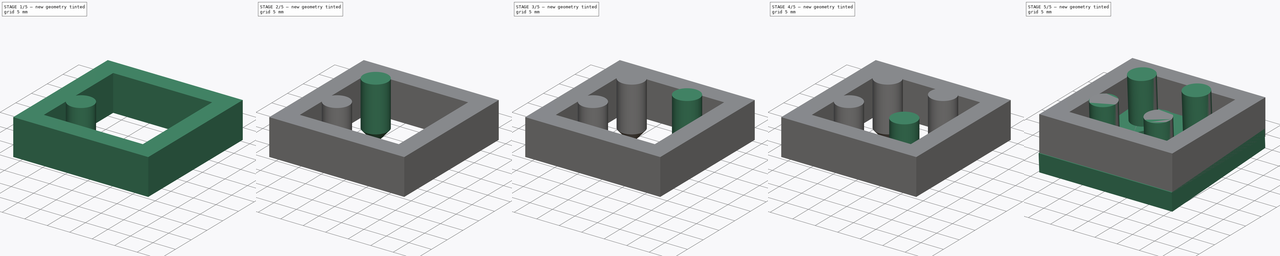
[diagram: build sequence overview — one tinted view per stage of 5, left to right]
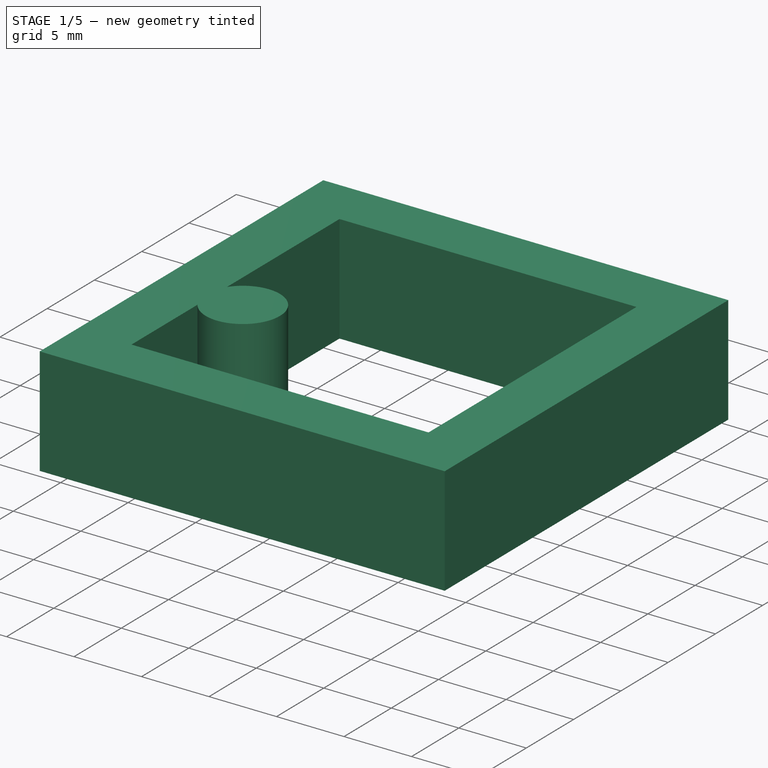
[diagram: stage 1 of 5 — iso view after this stage's code; geometry added in this stage tinted green]
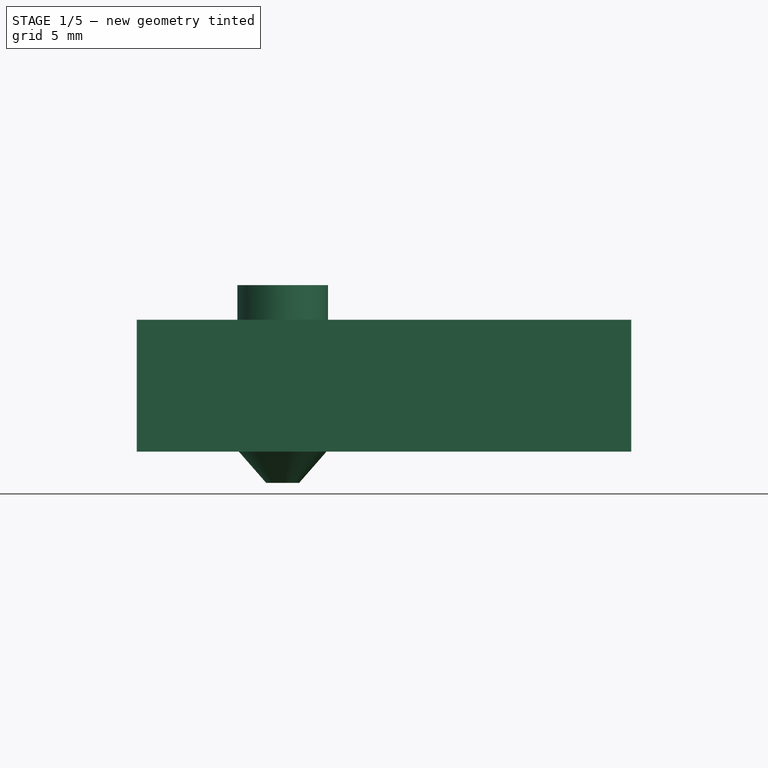
[diagram: stage 1 of 5 — front view after this stage's code; geometry added in this stage tinted green]
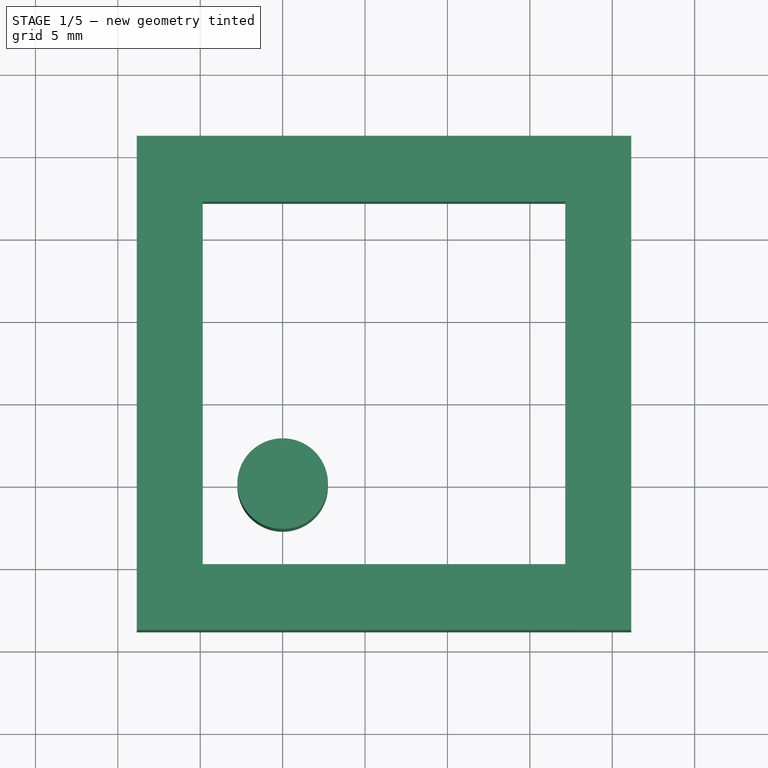
[diagram: stage 1 of 5 — top view after this stage's code; geometry added in this stage tinted green]
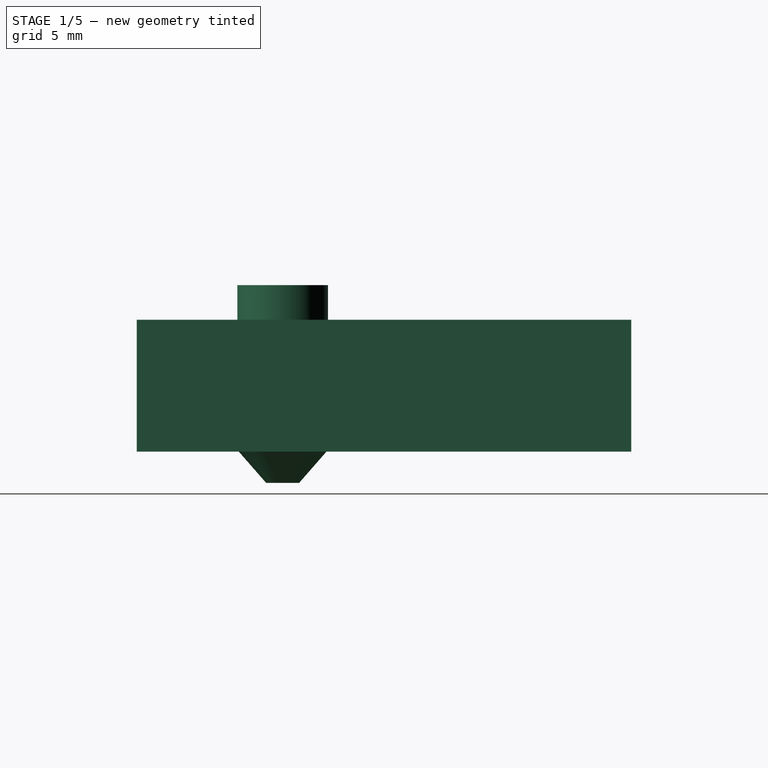
[diagram: stage 1 of 5 — right view after this stage's code; geometry added in this stage tinted green]
FCSTD DOCUMENT  (FreeCAD 0.19R0.19.2)
Label: motorMount006
License: All rights reserved
LicenseURL: http://en.wikipedia.org/wiki/All_rights_reserved
objects: Part::Cone×4, Part::Cylinder×4, Part::Fuse×4, Sketcher::SketchObject×2, Part::Extrusion×2, Part::MultiFuse×1
note: 17 computed .brp shape members not serialized (recipe doc carries the construction recipe); baked Part::Feature solids carry a one-line shape summary decoded from their .brp

FEATURE [Part::Cone] Cone003
  Angle = 360
  AttacherType = Attacher::AttachEngine3D
  Height = 2
  Placement = pos=(0,0,1.5) rot=(0,0,1;0rad)
  Radius1 = 1
  Radius2 = 2.75
FEATURE [Part::Cylinder] Cylinder003
  Angle = 360
  AttacherType = Attacher::AttachEngine3D
  Height = 10
  Placement = pos=(0,0,3.5) rot=(0,0,1;0rad)
  Radius = 2.75
FEATURE [Sketcher::SketchObject] Sketch001
  FullyConstrained = true
  sketch-geometry (8):
    g0: LineSegment StartX=-8.85 StartY=21.15 StartZ=0 EndX=21.15 EndY=21.15 EndZ=0
    g1: LineSegment StartX=21.15 StartY=21.15 StartZ=0 EndX=21.15 EndY=-8.85 EndZ=0
    g2: LineSegment StartX=-8.85 StartY=21.15 StartZ=0 EndX=-8.85 EndY=-8.85 EndZ=0
    g3: LineSegment StartX=-8.85 StartY=-8.85 StartZ=0 EndX=21.15 EndY=-8.85 EndZ=0
    g4: LineSegment StartX=-4.85 StartY=-4.85 StartZ=0 EndX=17.15 EndY=-4.85 EndZ=0
    g5: LineSegment StartX=17.15 StartY=17.15 StartZ=0 EndX=17.15 EndY=-4.85 EndZ=0
    g6: LineSegment StartX=-4.85 StartY=17.15 StartZ=0 EndX=17.15 EndY=17.15 EndZ=0
    g7: LineSegment StartX=-4.85 StartY=17.15 StartZ=0 EndX=-4.85 EndY=-4.85 EndZ=0
  constraints (24):
    c: Horizontal(g0)
    c: Distance(g0) = 30
    c: Vertical(g1)
    c: Block(g0)
    c: Distance(g1) = 30
    c: Coincident(g1,g0)
    c: Vertical(g2)
    c: Distance(g2) = 30
    c: Coincident(g2,g0)
    c: Block(g2)
    c: Block(g1)
    c: Coincident(g3,g2)
    c: Coincident(g3,g1)
    c: Horizontal(g4)
    c: Distance(g4) = 22
    c: Coincident(g5,g4)
    c: Vertical(g5)
    c: PointOnObject(g6,g5)
    c: Horizontal(g6)
    c: Block(g6)
    c: Block(g5)
    c: Coincident(g7,g6)
    c: Coincident(g7,g4)
    c: Vertical(g7)
FEATURE [Part::Extrusion] Extrude001
  Base = -> Sketch001
  Dir = (0,0,1)
  DirMode = 2
  FaceMakerClass = Part::FaceMakerBullseye
  LengthFwd = 8
  LengthRev = 0
  Placement = pos=(0,0,3.4) rot=(0,0,1;0rad)
  Solid = true
  Symmetric = false
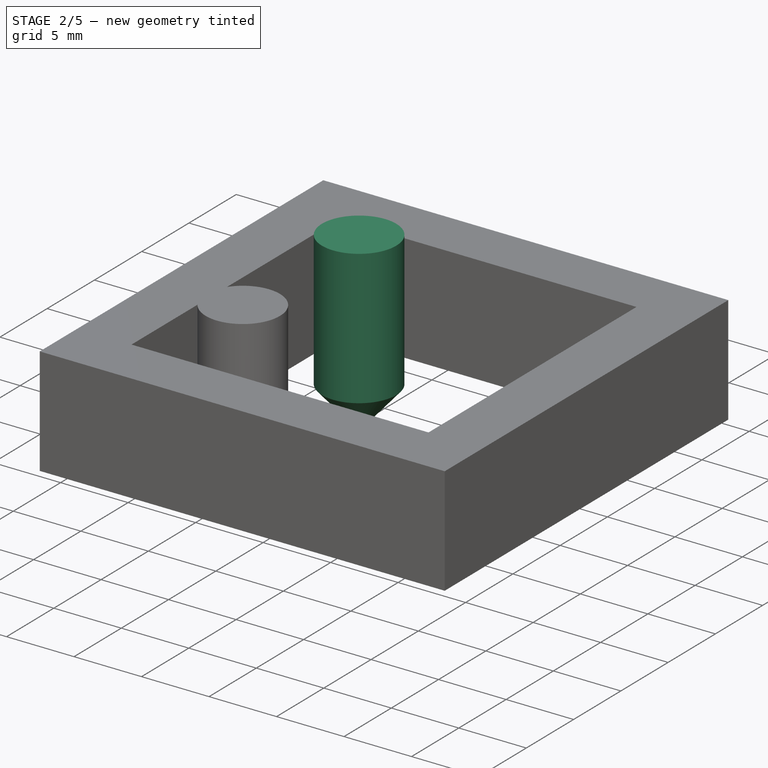
[diagram: stage 2 of 5 — iso view after this stage's code; geometry added in this stage tinted green]
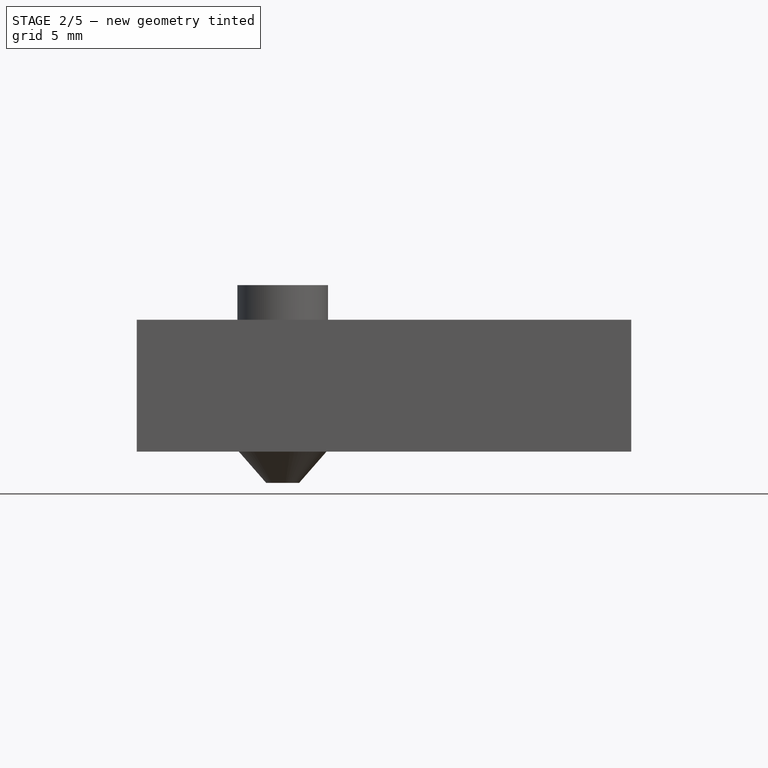
[diagram: stage 2 of 5 — front view after this stage's code; geometry added in this stage tinted green]
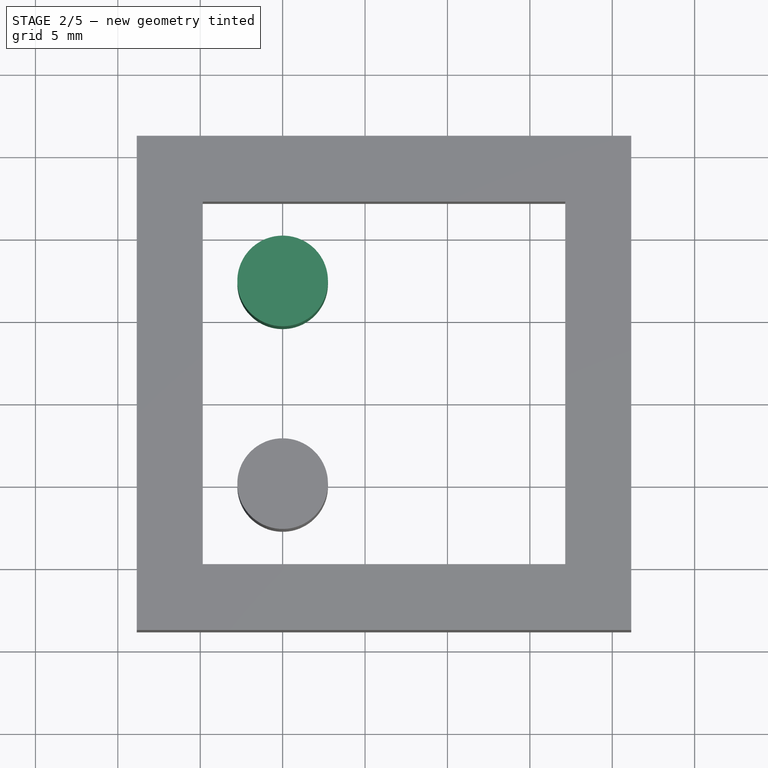
[diagram: stage 2 of 5 — top view after this stage's code; geometry added in this stage tinted green]
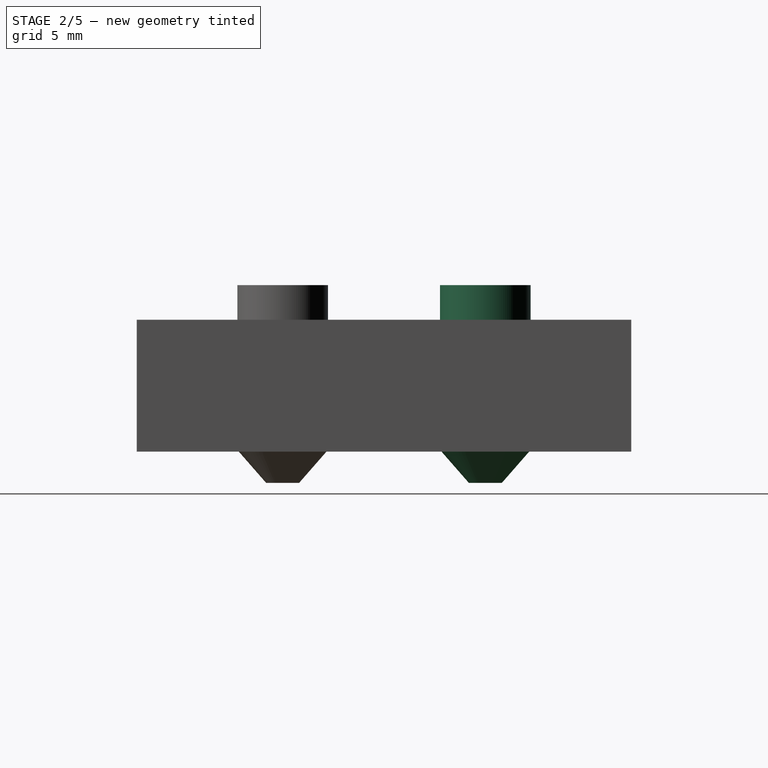
[diagram: stage 2 of 5 — right view after this stage's code; geometry added in this stage tinted green]
FEATURE [Part::Cone] Cone002
  Angle = 360
  AttacherType = Attacher::AttachEngine3D
  Height = 2
  Placement = pos=(0,0,1.5) rot=(0,0,1;0rad)
  Radius1 = 1
  Radius2 = 2.75
FEATURE [Part::Cylinder] Cylinder002
  Angle = 360
  AttacherType = Attacher::AttachEngine3D
  Height = 10
  Placement = pos=(0,0,3.5) rot=(0,0,1;0rad)
  Radius = 2.75
FEATURE [Part::Fuse] Fusion003  label="removeFromMainToCreateScrewChamfer003"
  Base = -> Cone003
  Placement = pos=(0,12.3,0) rot=(0,0,1;0rad)
  Tool = -> Cylinder003
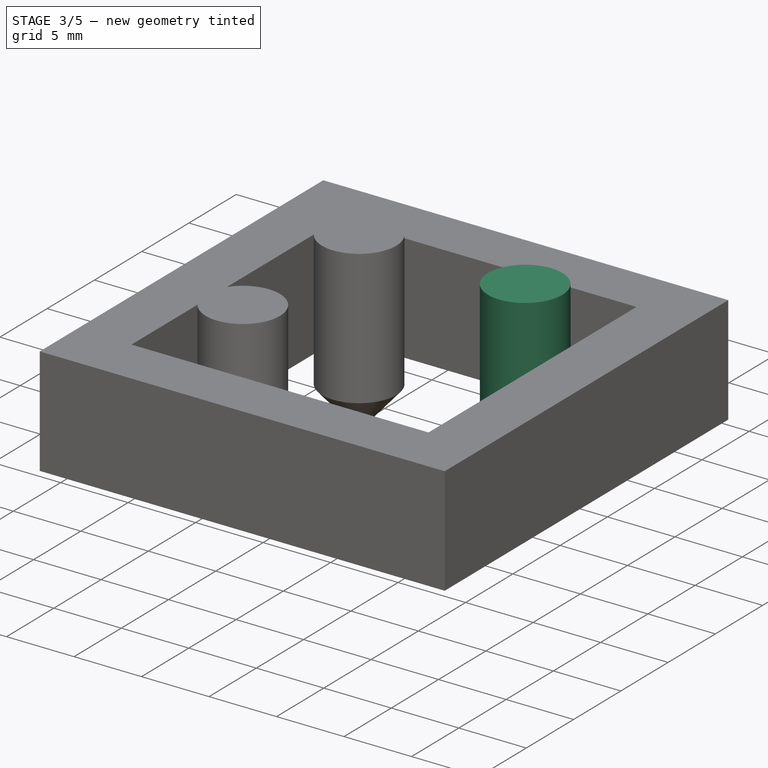
[diagram: stage 3 of 5 — iso view after this stage's code; geometry added in this stage tinted green]
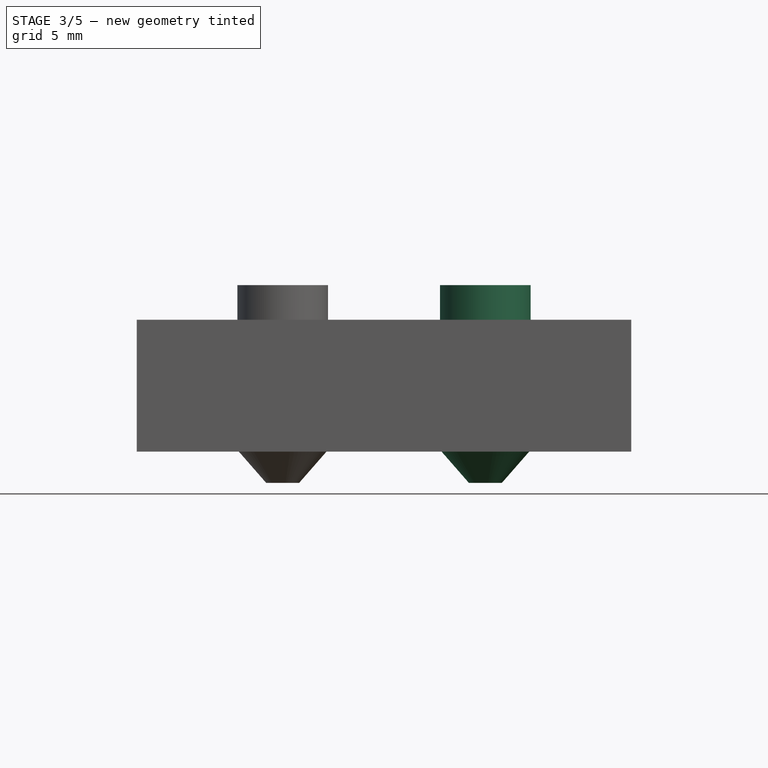
[diagram: stage 3 of 5 — front view after this stage's code; geometry added in this stage tinted green]
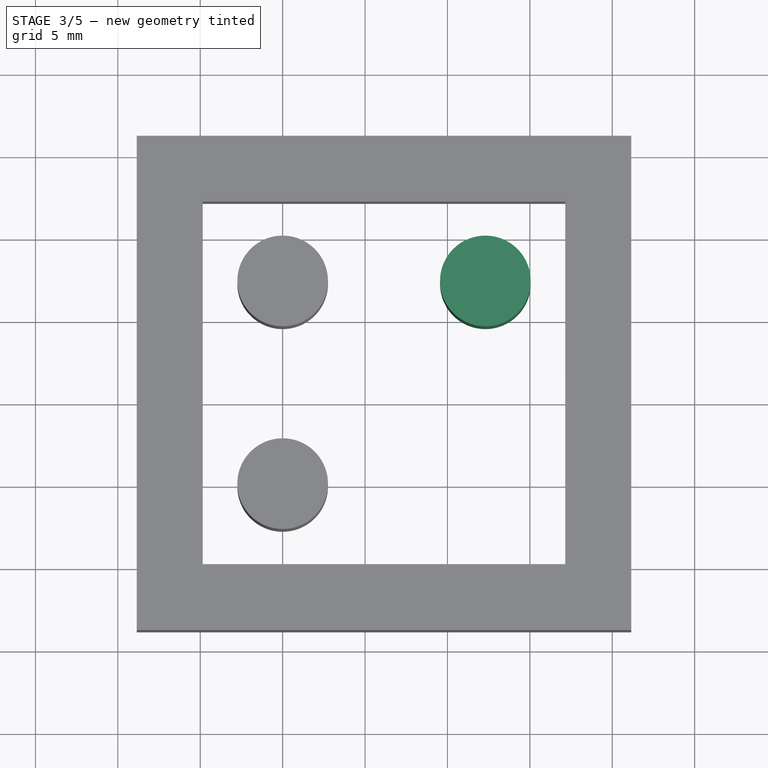
[diagram: stage 3 of 5 — top view after this stage's code; geometry added in this stage tinted green]
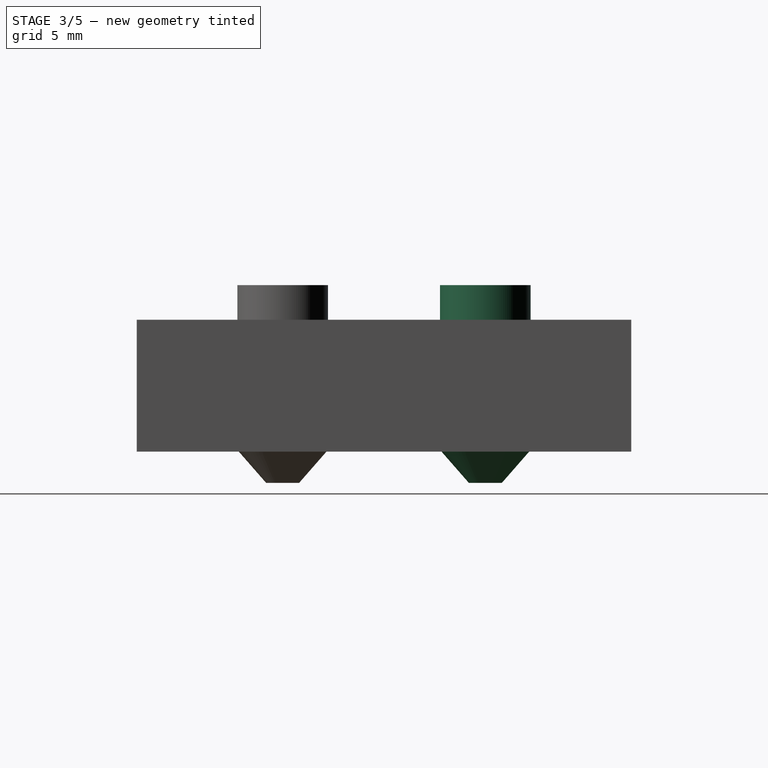
[diagram: stage 3 of 5 — right view after this stage's code; geometry added in this stage tinted green]
FEATURE [Part::Cone] Cone001
  Angle = 360
  AttacherType = Attacher::AttachEngine3D
  Height = 2
  Placement = pos=(0,0,1.5) rot=(0,0,1;0rad)
  Radius1 = 1
  Radius2 = 2.75
FEATURE [Part::Cylinder] Cylinder001
  Angle = 360
  AttacherType = Attacher::AttachEngine3D
  Height = 10
  Placement = pos=(0,0,3.5) rot=(0,0,1;0rad)
  Radius = 2.75
FEATURE [Part::Fuse] Fusion002  label="removeFromMainToCreateScrewChamfer002"
  Base = -> Cone002
  Placement = pos=(12.3,12.3,0) rot=(0,0,1;0rad)
  Tool = -> Cylinder002
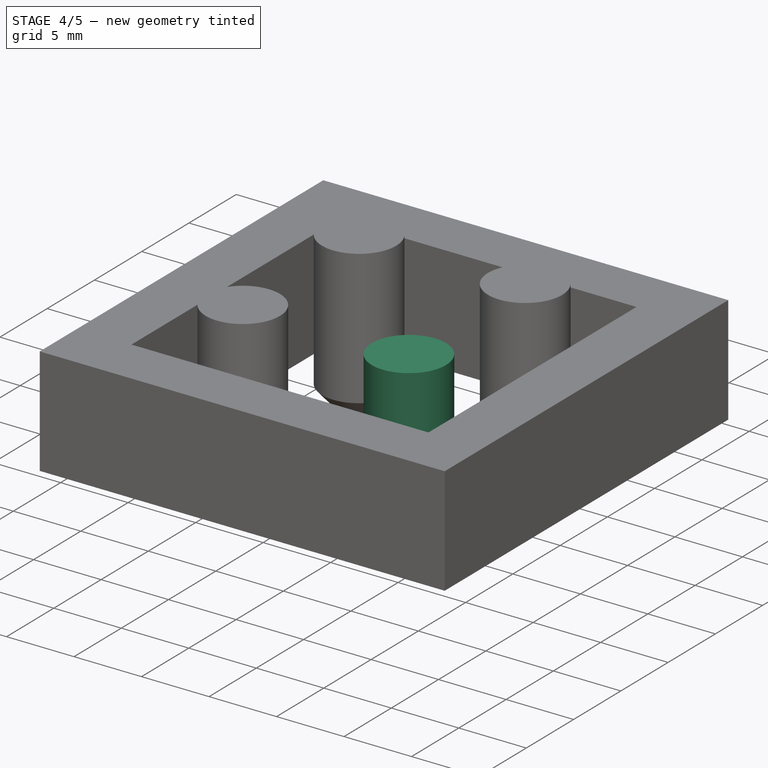
[diagram: stage 4 of 5 — iso view after this stage's code; geometry added in this stage tinted green]
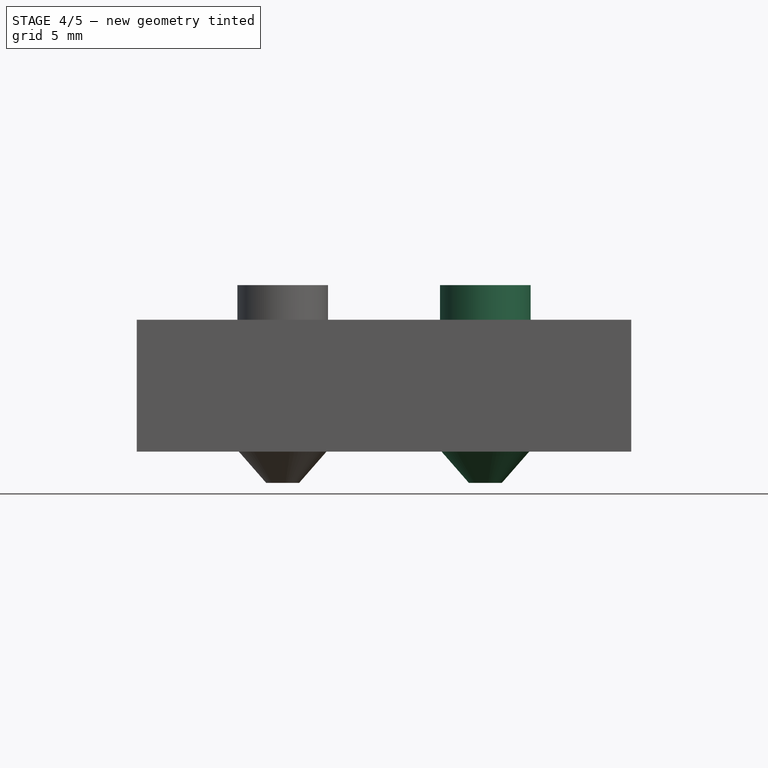
[diagram: stage 4 of 5 — front view after this stage's code; geometry added in this stage tinted green]
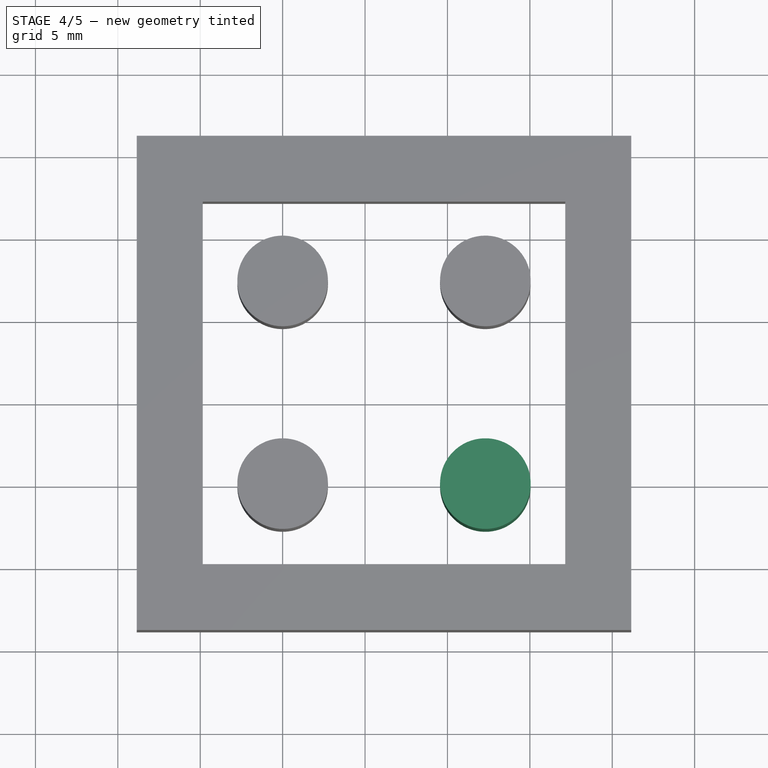
[diagram: stage 4 of 5 — top view after this stage's code; geometry added in this stage tinted green]
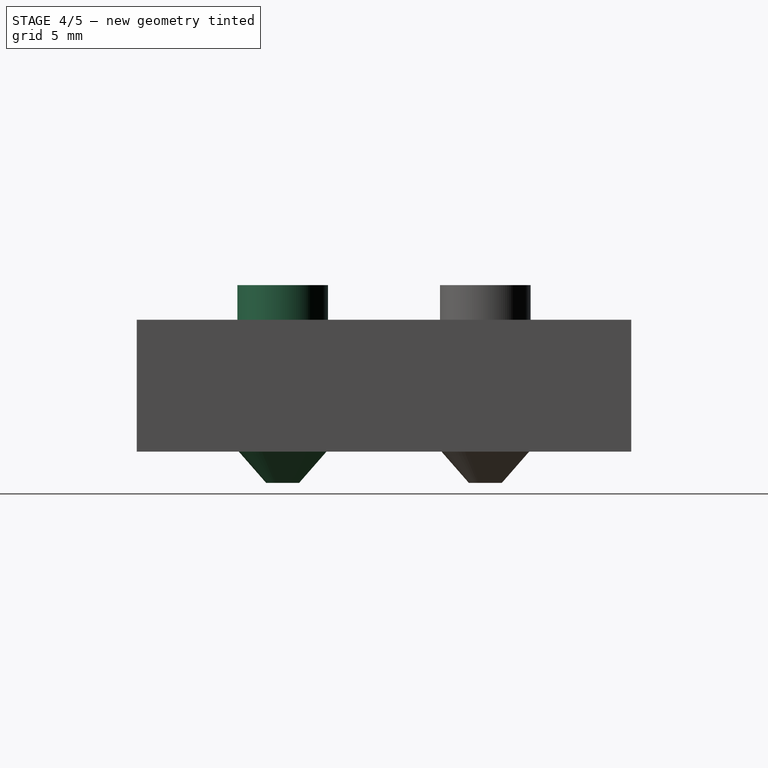
[diagram: stage 4 of 5 — right view after this stage's code; geometry added in this stage tinted green]
FEATURE [Part::Cone] Cone
  Angle = 360
  AttacherType = Attacher::AttachEngine3D
  Height = 2
  Placement = pos=(0,0,1.5) rot=(0,0,1;0rad)
  Radius1 = 1
  Radius2 = 2.75
FEATURE [Part::Cylinder] Cylinder
  Angle = 360
  AttacherType = Attacher::AttachEngine3D
  Height = 10
  Placement = pos=(0,0,3.5) rot=(0,0,1;0rad)
  Radius = 2.75
FEATURE [Part::Fuse] Fusion001  label="removeFromMainToCreateScrewChamfer001"
  Base = -> Cone001
  Placement = pos=(12.3,0,0) rot=(0,0,1;0rad)
  Tool = -> Cylinder001
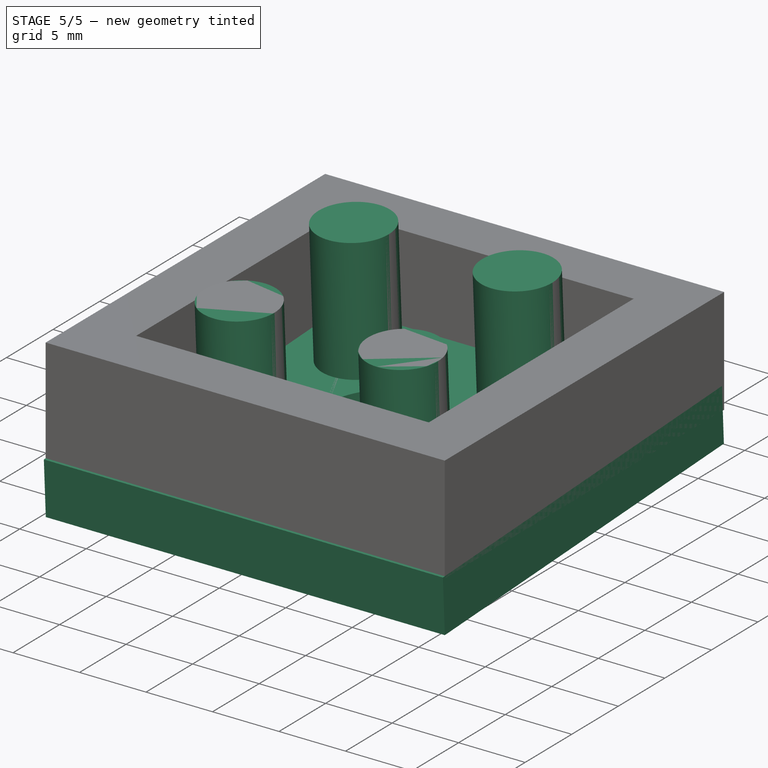
[diagram: stage 5 of 5 — iso view after this stage's code; geometry added in this stage tinted green]
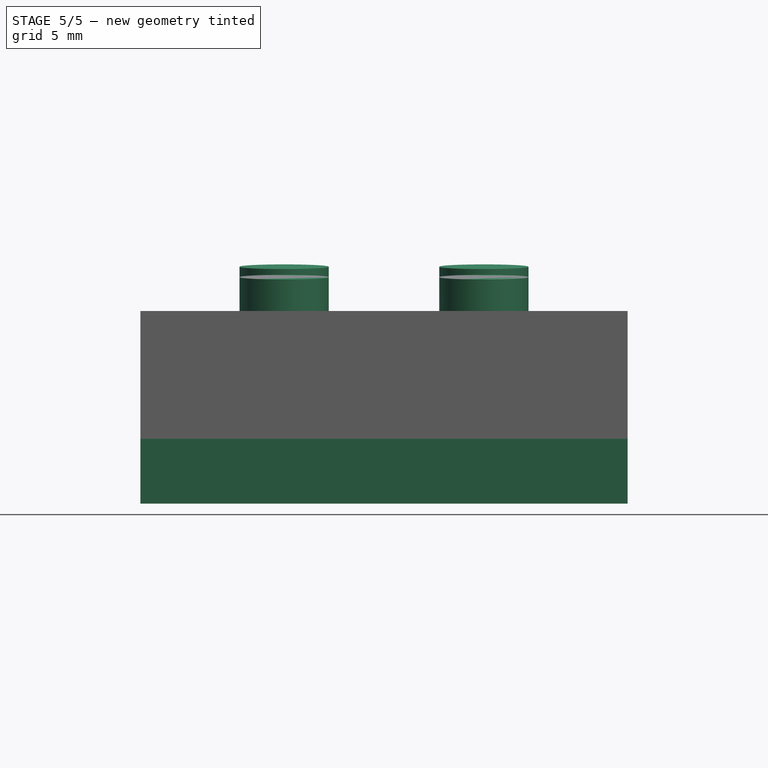
[diagram: stage 5 of 5 — front view after this stage's code; geometry added in this stage tinted green]
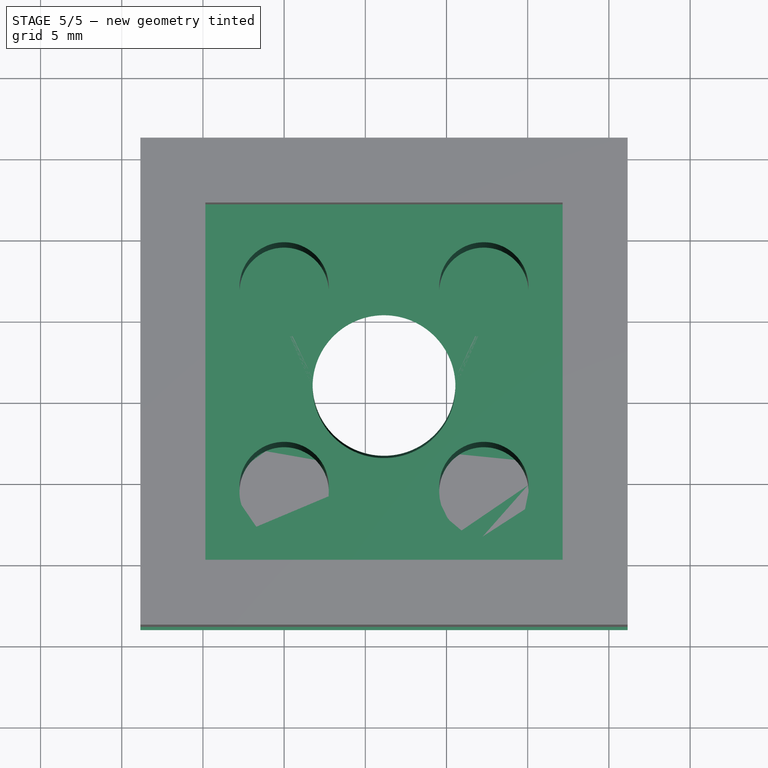
[diagram: stage 5 of 5 — top view after this stage's code; geometry added in this stage tinted green]
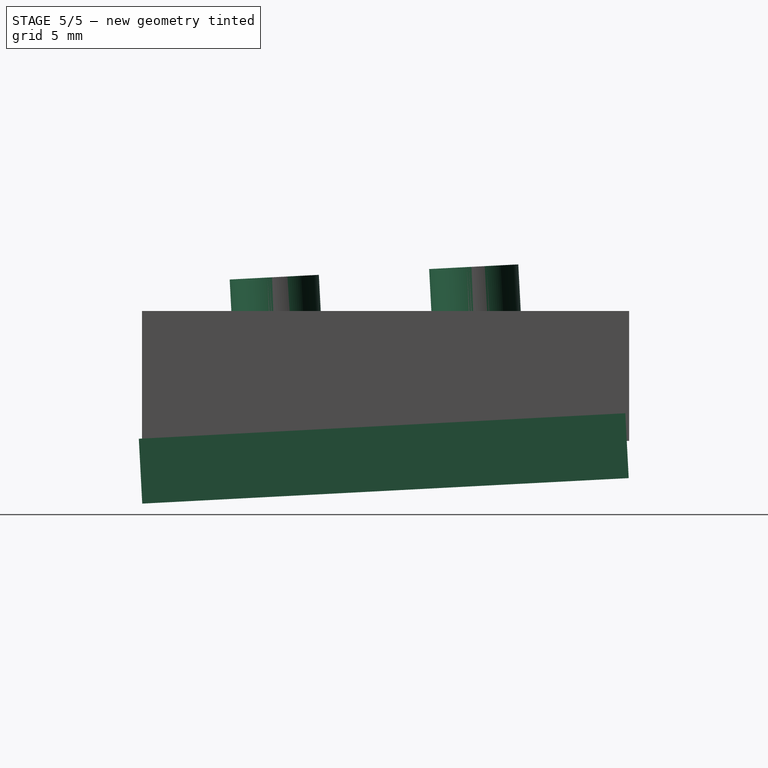
[diagram: stage 5 of 5 — right view after this stage's code; geometry added in this stage tinted green]
FEATURE [Sketcher::SketchObject] Sketch
  FullyConstrained = true
  sketch-geometry (9):
    g0: Circle CenterX=6.15 CenterY=6.15 CenterZ=0 NormalX=0 NormalY=0 NormalZ=1 AngleXU=0 Radius=4.4
    g1: LineSegment StartX=-8.85 StartY=21.15 StartZ=0 EndX=21.15 EndY=21.15 EndZ=0
    g2: LineSegment StartX=21.15 StartY=21.15 StartZ=0 EndX=21.15 EndY=-8.85 EndZ=0
    g3: LineSegment StartX=-8.85 StartY=21.15 StartZ=0 EndX=-8.85 EndY=-8.85 EndZ=0
    g4: LineSegment StartX=-8.85 StartY=-8.85 StartZ=0 EndX=21.15 EndY=-8.85 EndZ=0
    g5: Circle CenterX=0 CenterY=12.3 CenterZ=0 NormalX=0 NormalY=0 NormalZ=1 AngleXU=0 Radius=1
    g6: Circle CenterX=12.3 CenterY=12.3 CenterZ=0 NormalX=0 NormalY=0 NormalZ=1 AngleXU=0 Radius=1
    g7: Circle CenterX=12.3 CenterY=0 CenterZ=0 NormalX=0 NormalY=0 NormalZ=1 AngleXU=0 Radius=1
    g8: Circle CenterX=0 CenterY=0 CenterZ=0 NormalX=0 NormalY=0 NormalZ=1 AngleXU=0 Radius=1
  constraints (18):
    c: Block(g0)
    c: Horizontal(g1)
    c: Distance(g1) = 30
    c: Vertical(g2)
    c: Block(g1)
    c: Distance(g2) = 30
    c: Coincident(g2,g1)
    c: Vertical(g3)
    c: Distance(g3) = 30
    c: Coincident(g3,g1)
    c: Block(g3)
    c: Block(g2)
    c: Coincident(g4,g3)
    c: Coincident(g4,g2)
    c: Block(g5)
    c: Block(g6)
    c: Block(g7)
    c: Block(g8)
FEATURE [Part::Extrusion] Extrude
  Base = -> Sketch
  Dir = (0,0,1)
  DirMode = 2
  FaceMakerClass = Part::FaceMakerBullseye
  LengthFwd = 4
  LengthRev = 0
  Placement = pos=(0,0,0) rot=(1,0,0;0.05236rad)
  Solid = true
  Symmetric = false
FEATURE [Part::Fuse] Fusion  label="removeFromMainToCreateScrewChamfer"
  Base = -> Cone
  Tool = -> Cylinder
FEATURE [Part::MultiFuse] Fusion004  label="removeFromMainToCreateScrewChamfer004"
  Placement = pos=(0,0,0) rot=(1,0,0;0.05236rad)
  Shapes = -> [Fusion,Fusion001,Fusion002,Fusion003]
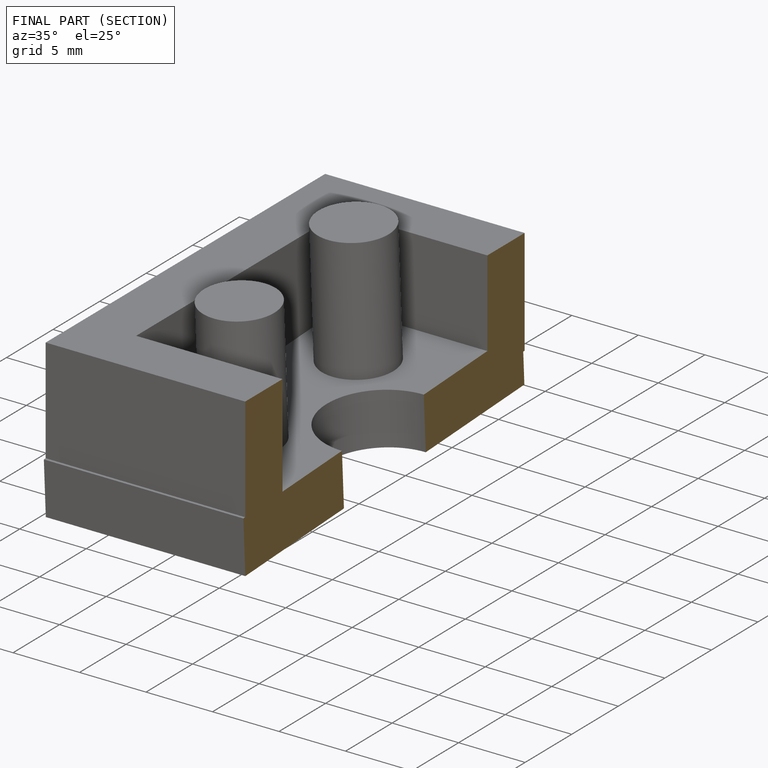
[diagram: finished part — half-section view (interior)]
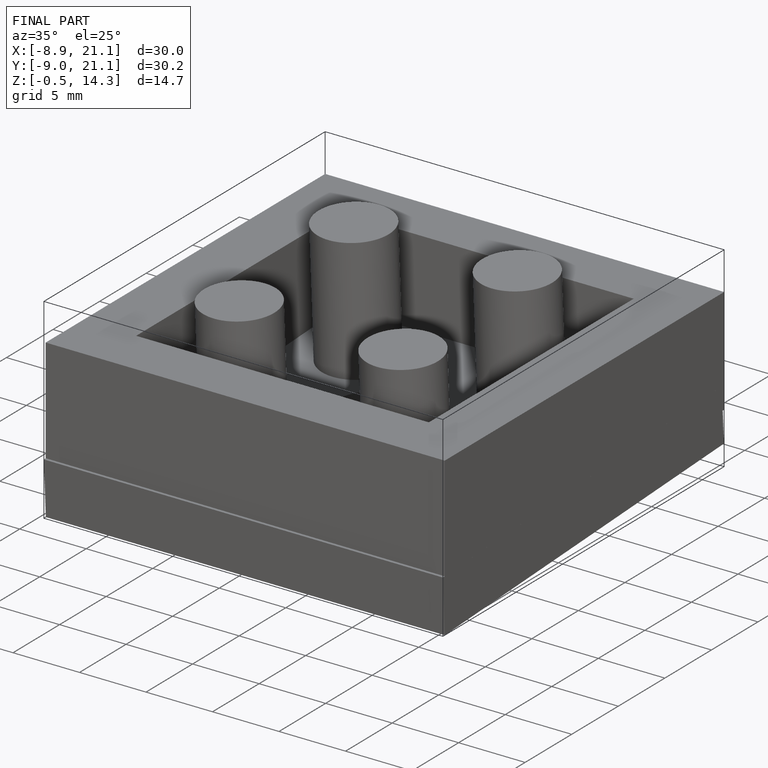
[diagram: finished part — iso view with bounding-box wireframe]
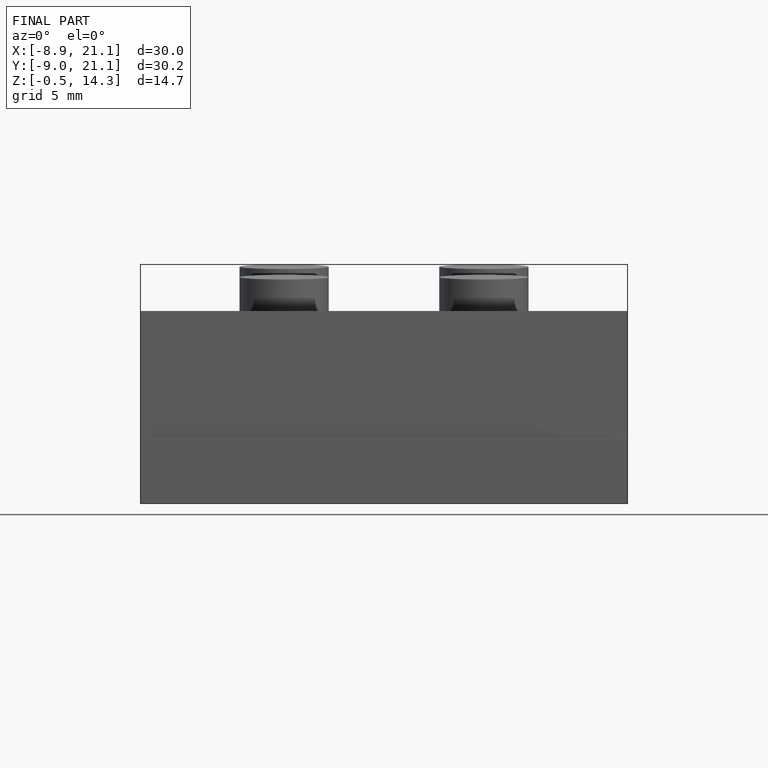
[diagram: finished part — front view with bounding-box wireframe]
